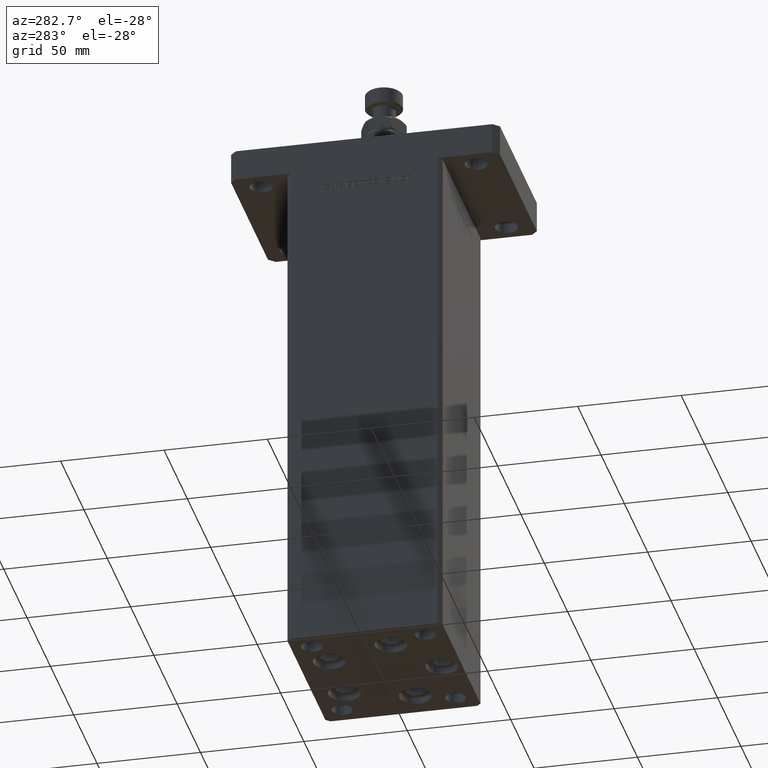
[diagram: clean part render]
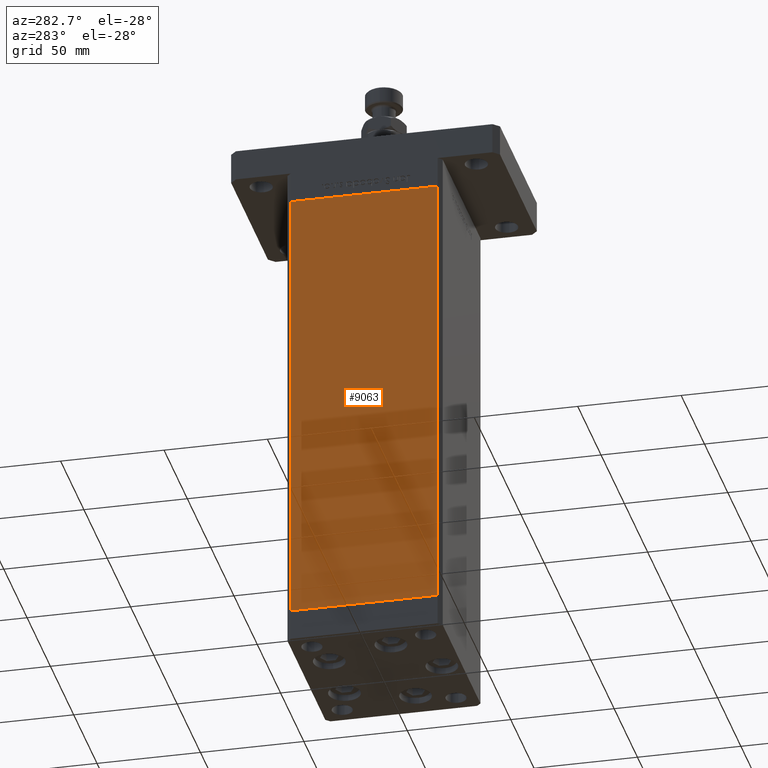
[diagram: same view with one face highlighted and labeled with its STEP entity id]
A machine part, auxiliary view. The second image highlights one B-rep face of the part: STEP entity #9063.
In plain terms, the highlighted planar face has unit normal (1, 0, 0).
Its self-contained STEP definition (entity closure, byte-faithful):
#763 = DIRECTION ( 'NONE',  ( -2.931927001650941360E-16, 1.000000000000000000, 0.000000000000000000 ) ) ;
#914 = DIRECTION ( 'NONE',  ( 2.931927001650941360E-16, -1.000000000000000000, 0.000000000000000000 ) ) ;
#2022 = CARTESIAN_POINT ( 'NONE',  ( -42.49999999999998579, -35.50000000000000711, 218.5000000000000000 ) ) ;
#2315 = LINE ( 'NONE', #35582, #15297 ) ;
#3693 = DIRECTION ( 'NONE',  ( 2.931927001650941360E-16, -1.000000000000000000, 0.000000000000000000 ) ) ;
#7444 = CARTESIAN_POINT ( 'NONE',  ( -42.50000000000000711, 35.50000000000001421, 218.5000000000000000 ) ) ;
#8006 = AXIS2_PLACEMENT_3D ( 'NONE', #47157, #25371, #763 ) ;
#8314 = PLANE ( 'NONE',  #8006 ) ;
#8739 = EDGE_LOOP ( 'NONE', ( #10459, #11007, #42855, #19114 ) ) ;
#9063 = ADVANCED_FACE ( 'NONE', ( #29546 ), #8314, .F. ) ;
#10459 = ORIENTED_EDGE ( 'NONE', *, *, #41699, .T. ) ;
#11007 = ORIENTED_EDGE ( 'NONE', *, *, #55042, .F. ) ;
#13475 = LINE ( 'NONE', #26345, #53915 ) ;
#15297 = VECTOR ( 'NONE', #35855, 1000.000000000000000 ) ;
#16707 = VERTEX_POINT ( 'NONE', #7444 ) ;
#17985 = EDGE_CURVE ( 'NONE', #16707, #43266, #2315, .T. ) ;
#19114 = ORIENTED_EDGE ( 'NONE', *, *, #17985, .T. ) ;
#19891 = DIRECTION ( 'NONE',  ( -0.000000000000000000, -0.000000000000000000, -1.000000000000000000 ) ) ;
#25371 = DIRECTION ( 'NONE',  ( 1.000000000000000000, 2.931927001650941360E-16, -0.000000000000000000 ) ) ;
#25833 = EDGE_CURVE ( 'NONE', #16707, #28129, #13475, .T. ) ;
#26345 = CARTESIAN_POINT ( 'NONE',  ( -42.50000000000000711, 35.50000000000001421, 218.5000000000000000 ) ) ;
#28129 = VERTEX_POINT ( 'NONE', #39858 ) ;
#29546 = FACE_OUTER_BOUND ( 'NONE', #8739, .T. ) ;
#30354 = CARTESIAN_POINT ( 'NONE',  ( -42.50000000000000711, 35.50000000000001421, 0.000000000000000000 ) ) ;
#34603 = VERTEX_POINT ( 'NONE', #34737 ) ;
#34737 = CARTESIAN_POINT ( 'NONE',  ( -42.49999999999998579, -35.50000000000000711, 0.000000000000000000 ) ) ;
#35582 = CARTESIAN_POINT ( 'NONE',  ( -42.50000000000000711, 35.50000000000001421, 218.5000000000000000 ) ) ;
#35855 = DIRECTION ( 'NONE',  ( -0.000000000000000000, -0.000000000000000000, -1.000000000000000000 ) ) ;
#37023 = VECTOR ( 'NONE', #3693, 1000.000000000000000 ) ;
#39858 = CARTESIAN_POINT ( 'NONE',  ( -42.49999999999998579, -35.50000000000000711, 218.5000000000000000 ) ) ;
#40303 = LINE ( 'NONE', #2022, #50657 ) ;
#41699 = EDGE_CURVE ( 'NONE', #43266, #34603, #54278, .T. ) ;
#41976 = CARTESIAN_POINT ( 'NONE',  ( -42.50000000000000711, 35.50000000000001421, 0.000000000000000000 ) ) ;
#42855 = ORIENTED_EDGE ( 'NONE', *, *, #25833, .F. ) ;
#43266 = VERTEX_POINT ( 'NONE', #30354 ) ;
#47157 = CARTESIAN_POINT ( 'NONE',  ( -42.50000000000000711, 35.50000000000001421, 218.5000000000000000 ) ) ;
#50657 = VECTOR ( 'NONE', #19891, 1000.000000000000000 ) ;
#53915 = VECTOR ( 'NONE', #914, 1000.000000000000000 ) ;
#54278 = LINE ( 'NONE', #41976, #37023 ) ;
#55042 = EDGE_CURVE ( 'NONE', #28129, #34603, #40303, .T. ) ;